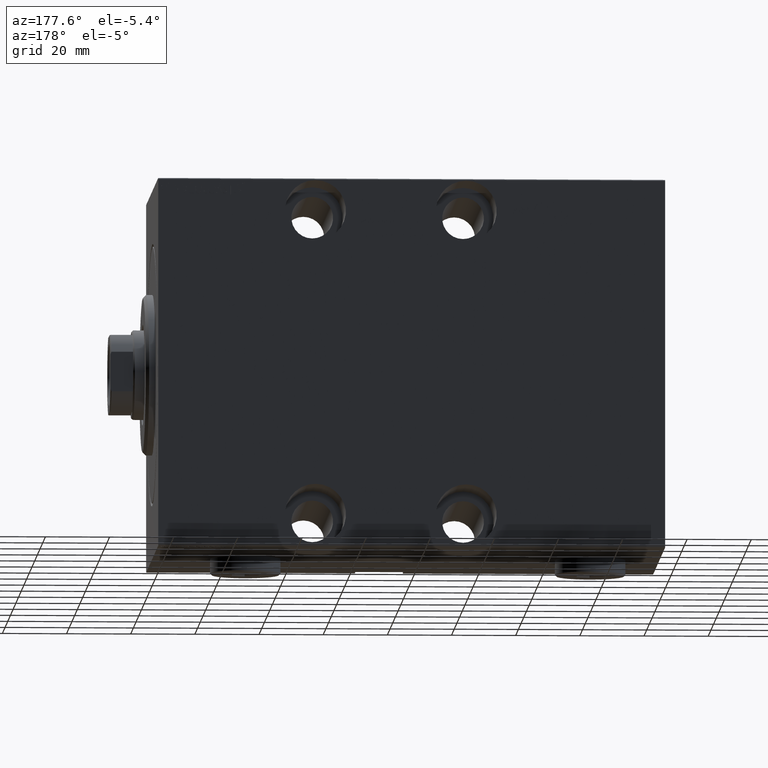
[diagram: clean part render]
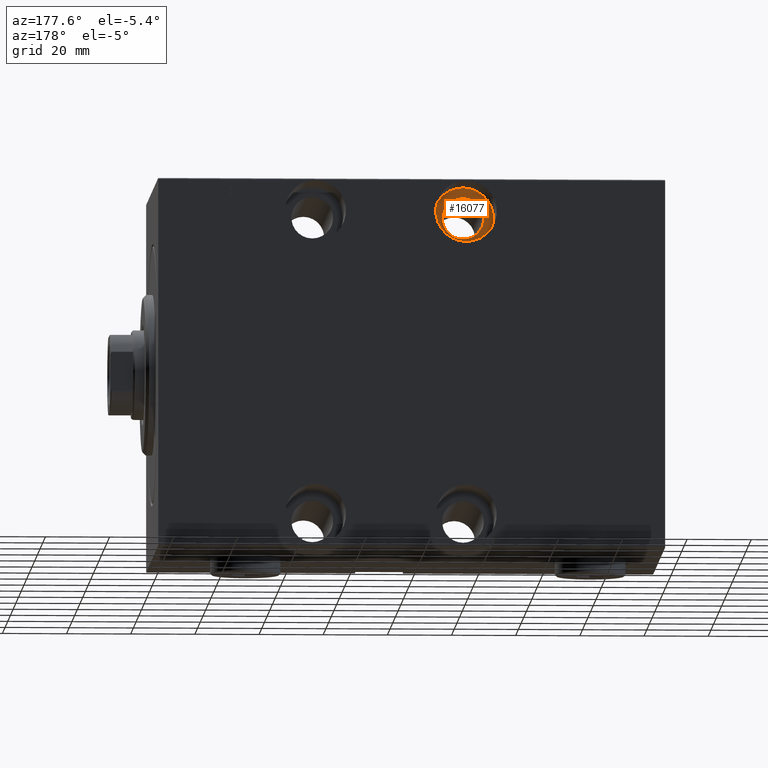
[diagram: same view with one face highlighted and labeled with its STEP entity id]
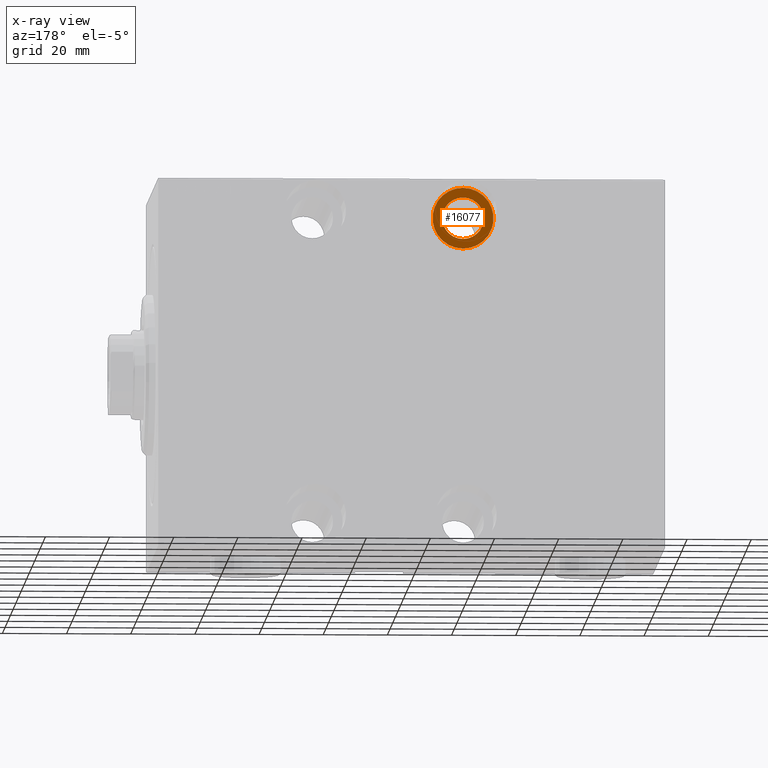
[diagram: x-ray of the same camera — body ghosted, the highlighted face saturated]
A machine part, auxiliary view. The second image highlights one B-rep face of the part: STEP entity #16077.
The next image is the same camera in x-ray: the body ghosted, the highlighted face saturated — about 0% of this face is hidden behind the body in this view.
In plain terms, the highlighted planar face has unit normal (-0, 1, 0).
Its self-contained STEP definition (entity closure, byte-faithful):
#1548 = CARTESIAN_POINT ( 'NONE',  ( 95.99999999999998579, -20.99999999999999645, 56.99999999999999289 ) ) ;
#2934 = CIRCLE ( 'NONE', #24856, 6.500000000000005329 ) ;
#3212 = DIRECTION ( 'NONE',  ( 0.000000000000000000, 0.000000000000000000, -1.000000000000000000 ) ) ;
#3816 = EDGE_CURVE ( 'NONE', #14391, #16274, #2934, .T. ) ;
#4969 = ORIENTED_EDGE ( 'NONE', *, *, #3816, .T. ) ;
#5622 = VERTEX_POINT ( 'NONE', #1548 ) ;
#5665 = DIRECTION ( 'NONE',  ( 0.000000000000000000, -1.000000000000000000, 0.000000000000000000 ) ) ;
#5885 = FACE_BOUND ( 'NONE', #27934, .T. ) ;
#6432 = EDGE_CURVE ( 'NONE', #5622, #24626, #7943, .T. ) ;
#6781 = DIRECTION ( 'NONE',  ( 0.000000000000000000, 0.000000000000000000, -1.000000000000000000 ) ) ;
#6961 = DIRECTION ( 'NONE',  ( -0.000000000000000000, 1.000000000000000000, -0.000000000000000000 ) ) ;
#7000 = CARTESIAN_POINT ( 'NONE',  ( 95.99999999999998579, -20.99999999999999645, 47.50000000000000000 ) ) ;
#7543 = DIRECTION ( 'NONE',  ( 0.000000000000000000, 0.000000000000000000, -1.000000000000000000 ) ) ;
#7943 = CIRCLE ( 'NONE', #24194, 9.499999999999994671 ) ;
#8190 = CIRCLE ( 'NONE', #43526, 6.500000000000005329 ) ;
#8992 = PLANE ( 'NONE',  #11734 ) ;
#11334 = DIRECTION ( 'NONE',  ( 0.000000000000000000, 0.000000000000000000, -1.000000000000000000 ) ) ;
#11360 = CARTESIAN_POINT ( 'NONE',  ( 95.99999999999998579, -20.99999999999999645, 38.00000000000000711 ) ) ;
#11734 = AXIS2_PLACEMENT_3D ( 'NONE', #22729, #5665, #32907 ) ;
#13153 = CARTESIAN_POINT ( 'NONE',  ( 95.99999999999998579, -20.99999999999999645, 40.99999999999999289 ) ) ;
#14391 = VERTEX_POINT ( 'NONE', #33660 ) ;
#14902 = EDGE_LOOP ( 'NONE', ( #23727, #31060 ) ) ;
#16077 = ADVANCED_FACE ( 'NONE', ( #43292, #5885 ), #8992, .T. ) ;
#16274 = VERTEX_POINT ( 'NONE', #13153 ) ;
#19515 = ORIENTED_EDGE ( 'NONE', *, *, #20986, .T. ) ;
#20046 = CARTESIAN_POINT ( 'NONE',  ( 95.99999999999998579, -20.99999999999999645, 47.50000000000000000 ) ) ;
#20986 = EDGE_CURVE ( 'NONE', #16274, #14391, #8190, .T. ) ;
#22729 = CARTESIAN_POINT ( 'NONE',  ( 95.99999999999998579, -20.99999999999999645, 47.50000000000000000 ) ) ;
#22988 = CIRCLE ( 'NONE', #41356, 9.499999999999994671 ) ;
#23727 = ORIENTED_EDGE ( 'NONE', *, *, #31434, .T. ) ;
#24194 = AXIS2_PLACEMENT_3D ( 'NONE', #40759, #27697, #7543 ) ;
#24626 = VERTEX_POINT ( 'NONE', #11360 ) ;
#24856 = AXIS2_PLACEMENT_3D ( 'NONE', #28166, #41651, #11334 ) ;
#27697 = DIRECTION ( 'NONE',  ( 0.000000000000000000, -1.000000000000000000, 0.000000000000000000 ) ) ;
#27801 = DIRECTION ( 'NONE',  ( 0.000000000000000000, -1.000000000000000000, 0.000000000000000000 ) ) ;
#27934 = EDGE_LOOP ( 'NONE', ( #4969, #19515 ) ) ;
#28166 = CARTESIAN_POINT ( 'NONE',  ( 95.99999999999998579, -20.99999999999999645, 47.50000000000000000 ) ) ;
#31060 = ORIENTED_EDGE ( 'NONE', *, *, #6432, .T. ) ;
#31434 = EDGE_CURVE ( 'NONE', #24626, #5622, #22988, .T. ) ;
#32907 = DIRECTION ( 'NONE',  ( 0.000000000000000000, -0.000000000000000000, -1.000000000000000000 ) ) ;
#33660 = CARTESIAN_POINT ( 'NONE',  ( 95.99999999999998579, -20.99999999999999645, 54.00000000000000711 ) ) ;
#40759 = CARTESIAN_POINT ( 'NONE',  ( 95.99999999999998579, -20.99999999999999645, 47.50000000000000000 ) ) ;
#41356 = AXIS2_PLACEMENT_3D ( 'NONE', #7000, #27801, #6781 ) ;
#41651 = DIRECTION ( 'NONE',  ( -0.000000000000000000, 1.000000000000000000, -0.000000000000000000 ) ) ;
#43292 = FACE_OUTER_BOUND ( 'NONE', #14902, .T. ) ;
#43526 = AXIS2_PLACEMENT_3D ( 'NONE', #20046, #6961, #3212 ) ;